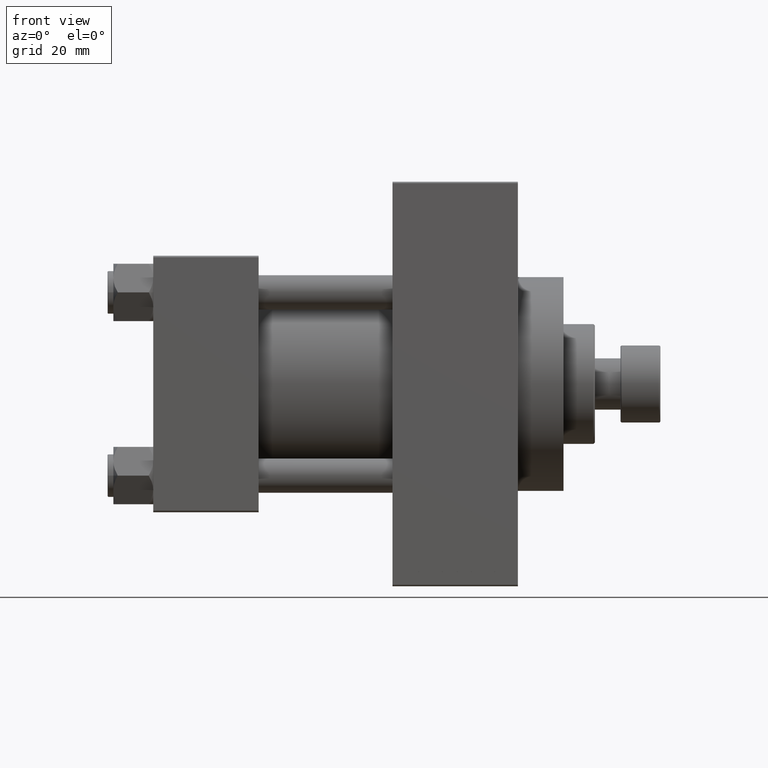
[diagram: clean part render]
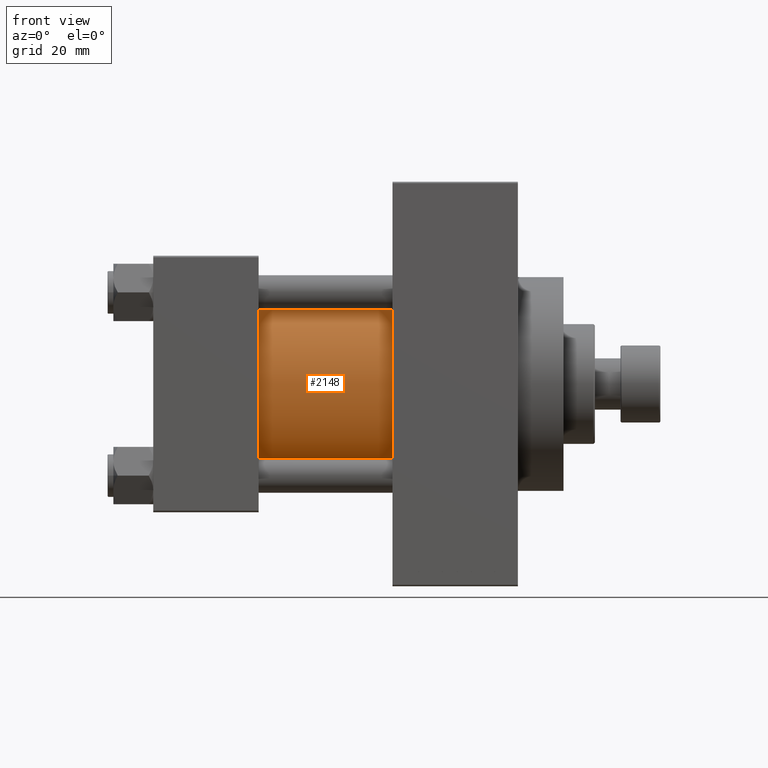
[diagram: same view with one face highlighted and labeled with its STEP entity id]
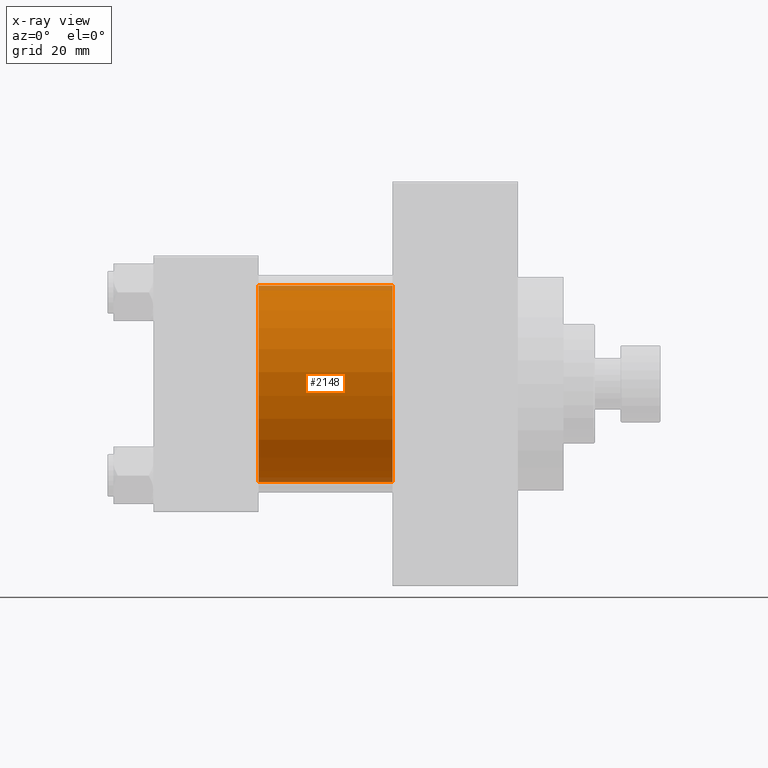
[diagram: x-ray of the same camera — body ghosted, the highlighted face saturated]
A machine part, front view. The second image highlights one B-rep face of the part: STEP entity #2148.
The next image is the same camera in x-ray: the body ghosted, the highlighted face saturated — about 5% of this face is hidden behind the body in this view.
In plain terms, the highlighted cylindrical surface (partial cylindrical patch) has radius 34.5 mm, axis along (-1, -0, -0).
Its self-contained STEP definition (entity closure, byte-faithful):
#2148 = ADVANCED_FACE ( 'NONE', ( #4674 ), #12364, .T. ) ;
#3132 = DIRECTION ( 'NONE',  ( 0.000000000000000000, 0.000000000000000000, 1.000000000000000000 ) ) ;
#4598 = ORIENTED_EDGE ( 'NONE', *, *, #42800, .F. ) ;
#4674 = FACE_OUTER_BOUND ( 'NONE', #39803, .T. ) ;
#6260 = CARTESIAN_POINT ( 'NONE',  ( 37.00000000000000000, 1.622946243093158675E-15, -34.50000000000000000 ) ) ;
#6343 = VECTOR ( 'NONE', #43264, 1000.000000000000000 ) ;
#6626 = LINE ( 'NONE', #21078, #6343 ) ;
#9452 = AXIS2_PLACEMENT_3D ( 'NONE', #47017, #43393, #3132 ) ;
#11818 = VECTOR ( 'NONE', #27622, 1000.000000000000000 ) ;
#12181 = ORIENTED_EDGE ( 'NONE', *, *, #30628, .T. ) ;
#12364 = CYLINDRICAL_SURFACE ( 'NONE', #29776, 34.50000000000000000 ) ;
#12884 = VERTEX_POINT ( 'NONE', #34859 ) ;
#13299 = CIRCLE ( 'NONE', #9452, 34.50000000000000000 ) ;
#15124 = CARTESIAN_POINT ( 'NONE',  ( 83.99999999999998579, -2.602085213965210642E-15, 0.000000000000000000 ) ) ;
#15255 = DIRECTION ( 'NONE',  ( -1.000000000000000000, -0.000000000000000000, -0.000000000000000000 ) ) ;
#16530 = CARTESIAN_POINT ( 'NONE',  ( 83.99999999999998579, -2.602085213965210642E-15, 34.50000000000000000 ) ) ;
#18446 = CARTESIAN_POINT ( 'NONE',  ( 83.99999999999998579, 1.622946243093158675E-15, -34.50000000000000000 ) ) ;
#19832 = DIRECTION ( 'NONE',  ( 0.000000000000000000, 0.000000000000000000, 1.000000000000000000 ) ) ;
#20518 = AXIS2_PLACEMENT_3D ( 'NONE', #15124, #43435, #44558 ) ;
#21078 = CARTESIAN_POINT ( 'NONE',  ( 83.99999999999998579, 1.622946243093158675E-15, -34.50000000000000000 ) ) ;
#23541 = LINE ( 'NONE', #16530, #11818 ) ;
#23946 = VERTEX_POINT ( 'NONE', #6260 ) ;
#27622 = DIRECTION ( 'NONE',  ( -1.000000000000000000, -0.000000000000000000, -0.000000000000000000 ) ) ;
#29123 = EDGE_CURVE ( 'NONE', #37654, #23946, #6626, .T. ) ;
#29769 = ORIENTED_EDGE ( 'NONE', *, *, #32355, .T. ) ;
#29776 = AXIS2_PLACEMENT_3D ( 'NONE', #33815, #15255, #19832 ) ;
#30628 = EDGE_CURVE ( 'NONE', #12884, #23946, #13299, .T. ) ;
#31285 = VERTEX_POINT ( 'NONE', #40599 ) ;
#32355 = EDGE_CURVE ( 'NONE', #31285, #12884, #23541, .T. ) ;
#33815 = CARTESIAN_POINT ( 'NONE',  ( 83.99999999999998579, -2.602085213965210642E-15, 0.000000000000000000 ) ) ;
#34859 = CARTESIAN_POINT ( 'NONE',  ( 37.00000000000000000, -2.602085213965210642E-15, 34.50000000000000000 ) ) ;
#37654 = VERTEX_POINT ( 'NONE', #18446 ) ;
#39803 = EDGE_LOOP ( 'NONE', ( #47391, #4598, #29769, #12181 ) ) ;
#40599 = CARTESIAN_POINT ( 'NONE',  ( 83.99999999999998579, -2.602085213965210642E-15, 34.50000000000000000 ) ) ;
#42800 = EDGE_CURVE ( 'NONE', #31285, #37654, #42874, .T. ) ;
#42874 = CIRCLE ( 'NONE', #20518, 34.50000000000000000 ) ;
#43264 = DIRECTION ( 'NONE',  ( -1.000000000000000000, -0.000000000000000000, -0.000000000000000000 ) ) ;
#43393 = DIRECTION ( 'NONE',  ( 1.000000000000000000, -0.000000000000000000, 0.000000000000000000 ) ) ;
#43435 = DIRECTION ( 'NONE',  ( 1.000000000000000000, 0.000000000000000000, 0.000000000000000000 ) ) ;
#44558 = DIRECTION ( 'NONE',  ( 0.000000000000000000, 0.000000000000000000, -1.000000000000000000 ) ) ;
#47017 = CARTESIAN_POINT ( 'NONE',  ( 37.00000000000000000, -2.602085213965210642E-15, 0.000000000000000000 ) ) ;
#47391 = ORIENTED_EDGE ( 'NONE', *, *, #29123, .F. ) ;